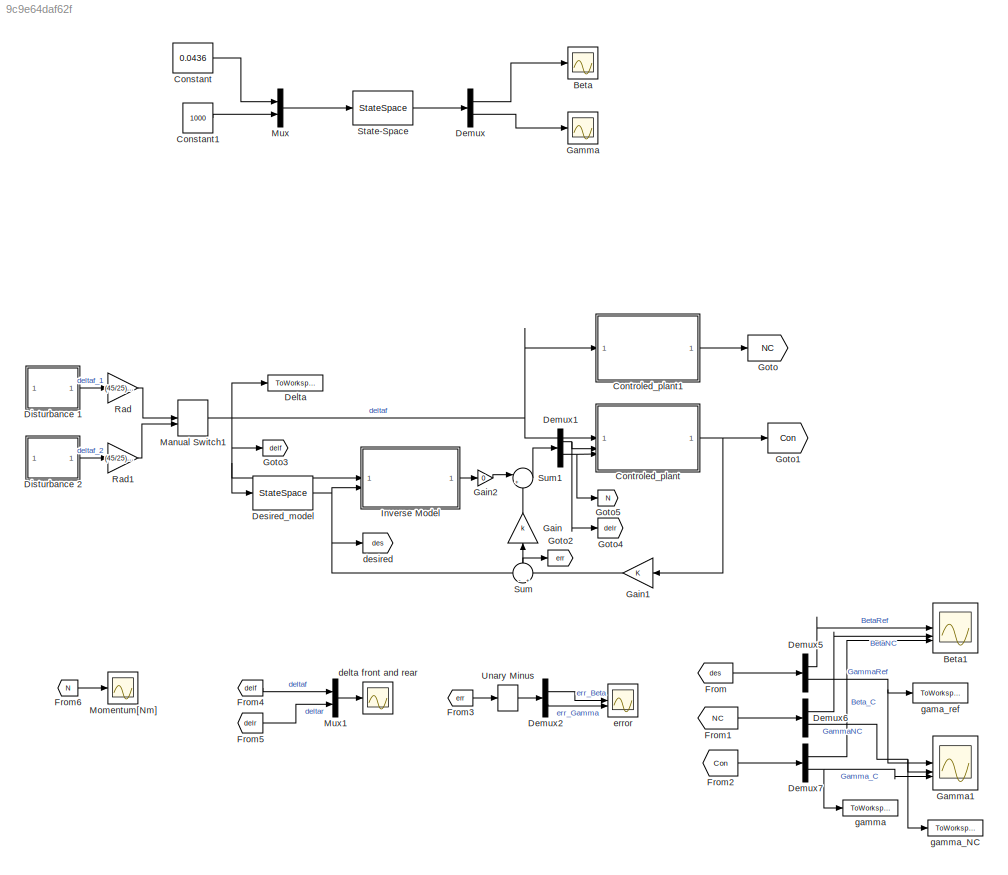
MODEL slx_9c9e64daf62f
KIND model
CONFIG AbsTol = auto
CONFIG EnableMultiTasking = off
CONFIG FixedStep = auto
CONFIG MaxStep = auto
CONFIG MinStep = auto
CONFIG RelTol = 1e-3
CONFIG SampleTimeConstraint = Unconstrained
CONFIG SolverName = VariableStepAuto
CONFIG StartTime = 0.0
CONFIG StopTime = 3
BLOCK [Scope] Beta
  Floating = off
  NumInputPorts = 1
  ScopeSpecificationString = Simulink.scopes.TimeScopeBlockCfg('CurrentConfiguration', extmgr.ConfigurationSet(extmgr.Configuration('Core','General UI',true,'FigureColor',[1 1 1]),extmgr.Configuration('Core','Source UI',true),extmgr.Configuration('Sources','WiredSimulink',true,'DataLoggingVariableName','ScopeData1'),extmgr.Configuration('Visuals','Time Domain',true,'SerializedDisplays',{struct('MinYLimReal','-0.00706','MaxYLi...<+1555ch>
BLOCK [Scope] Beta1
  Floating = off
  NumInputPorts = 3
  ScopeSpecificationString = Simulink.scopes.TimeScopeBlockCfg('CurrentConfiguration', extmgr.ConfigurationSet(extmgr.Configuration('Core','General UI',true,'FigureColor',[1 1 1]),extmgr.Configuration('Core','Source UI',true),extmgr.Configuration('Sources','WiredSimulink',true,'DataLoggingVariableName','ScopeData3'),extmgr.Configuration('Visuals','Time Domain',true,'SerializedDisplays',{struct('MinYLimReal','-0.01402','MaxYLi...<+1808ch>
BLOCK [Constant] Constant
  Value = 0.0436
BLOCK [Constant] Constant1
  Value = 1000
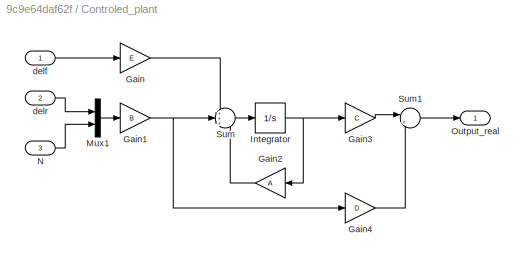
BLOCK [SubSystem] Controled_plant
BLOCK [Gain] Controled_plant/Gain
  Gain = E
  Multiplication = Matrix(K*u)
BLOCK [Gain] Controled_plant/Gain1
  Gain = B
  Multiplication = Matrix(K*u)
BLOCK [Gain] Controled_plant/Gain2
  Gain = A
  Multiplication = Matrix(K*u)
BLOCK [Gain] Controled_plant/Gain3
  Gain = C
  Multiplication = Matrix(K*u)
BLOCK [Gain] Controled_plant/Gain4
  Gain = D
  Multiplication = Matrix(K*u)
BLOCK [Integrator] Controled_plant/Integrator
  InitialCondition = x0
BLOCK [Mux] Controled_plant/Mux1
  DisplayOption = bar
  Inputs = 2
BLOCK [Inport] Controled_plant/N
  Port = 3
BLOCK [Outport] Controled_plant/Output_real
BLOCK [Sum] Controled_plant/Sum
  Inputs = +++
BLOCK [Sum] Controled_plant/Sum1
  Inputs = |++
BLOCK [Inport] Controled_plant/delf
BLOCK [Inport] Controled_plant/delr
  Port = 2
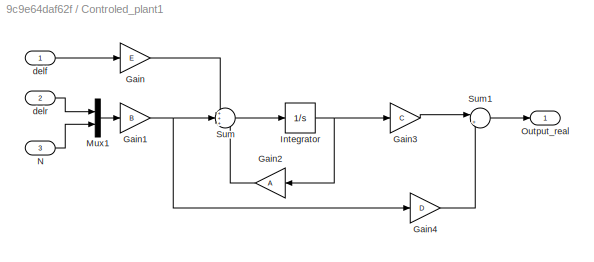
BLOCK [SubSystem] Controled_plant1
BLOCK [Gain] Controled_plant1/Gain
  Gain = E
  Multiplication = Matrix(K*u)
BLOCK [Gain] Controled_plant1/Gain1
  Gain = B
  Multiplication = Matrix(K*u)
BLOCK [Gain] Controled_plant1/Gain2
  Gain = A
  Multiplication = Matrix(K*u)
BLOCK [Gain] Controled_plant1/Gain3
  Gain = C
  Multiplication = Matrix(K*u)
BLOCK [Gain] Controled_plant1/Gain4
  Gain = D
  Multiplication = Matrix(K*u)
BLOCK [Integrator] Controled_plant1/Integrator
  InitialCondition = x0
BLOCK [Mux] Controled_plant1/Mux1
  DisplayOption = bar
  Inputs = 2
BLOCK [Inport] Controled_plant1/N
  Port = 3
BLOCK [Outport] Controled_plant1/Output_real
BLOCK [Sum] Controled_plant1/Sum
  Inputs = +++
BLOCK [Sum] Controled_plant1/Sum1
  Inputs = |++
BLOCK [Inport] Controled_plant1/delf
BLOCK [Inport] Controled_plant1/delr
  Port = 2
BLOCK [ToWorkspace] Delta
  FixptAsFi = on
  MaxDataPoints = inf
  SampleTime = -1
  SaveFormat = Timeseries
  VariableName = simout
BLOCK [Demux] Demux
  Outputs = 2
BLOCK [Demux] Demux1
  Outputs = 2
BLOCK [Demux] Demux2
  Outputs = 2
BLOCK [Demux] Demux5
  Outputs = 2
BLOCK [Demux] Demux6
  Outputs = 2
BLOCK [Demux] Demux7
  Outputs = 2
BLOCK [StateSpace] Desired_model
  A = Ad
  B = Ed
  C = [1,0;0,1]
  D = zeros(2,1)
  InitialCondition = 0
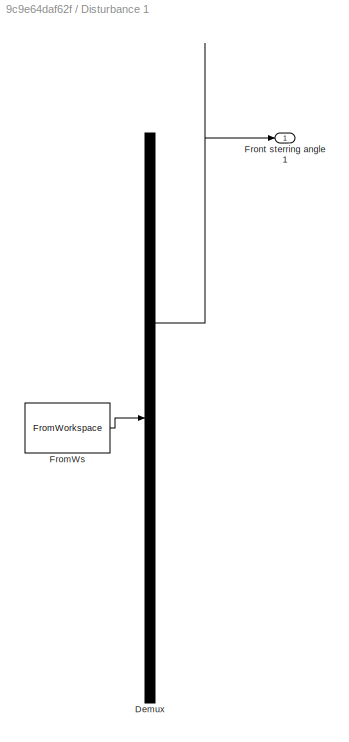
BLOCK [SubSystem] Disturbance 1
  ClipboardFcn = sigbuilder_block('clipboard');
  CloseFcn = sigbuilder_block('close');
  ContinueFcn = sigbuilder_block('continue');
  CopyFcn = sigbuilder_block('copy');
  DeleteFcn = sigbuilder_block('delete');
  LoadFcn = sigbuilder_block('load');
  MaskHideContents = on
  ModelCloseFcn = sigbuilder_block('modelClose');
  NameChangeFcn = sigbuilder_block('namechange');
  OpenFcn = sigbuilder_block('open',[265.8 141.6 550.8 400.2 ]);
  PauseFcn = sigbuilder_block('pause');
  PreSaveFcn = sigbuilder_block('preSave');
  StartFcn = sigbuilder_block('start');
  StopFcn = sigbuilder_block('stop');
  Tag = STV Subsys
BLOCK [Demux] Disturbance 1/Demux
  DisplayOption = none
  Outputs = 1
  Tag = STV Demux
BLOCK [FromWorkspace] Disturbance 1/FromWs
  Tag = STV FromWs
  VariableName = tuvar
BLOCK [Outport] Disturbance 1/Front sterring angle 1
  Tag = STV Outport
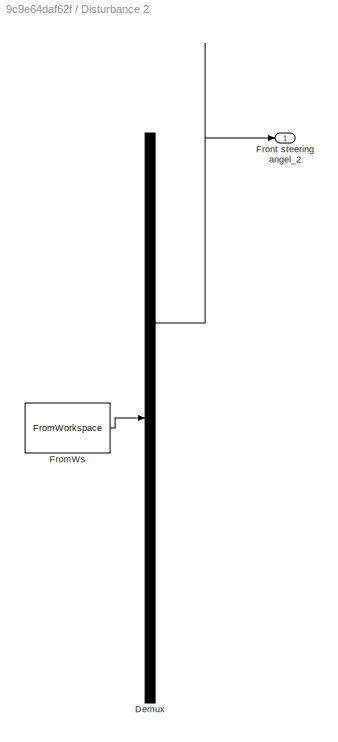
BLOCK [SubSystem] Disturbance 2
  ClipboardFcn = sigbuilder_block('clipboard');
  CloseFcn = sigbuilder_block('close');
  ContinueFcn = sigbuilder_block('continue');
  CopyFcn = sigbuilder_block('copy');
  DeleteFcn = sigbuilder_block('delete');
  LoadFcn = sigbuilder_block('load');
  MaskHideContents = on
  ModelCloseFcn = sigbuilder_block('modelClose');
  NameChangeFcn = sigbuilder_block('namechange');
  OpenFcn = sigbuilder_block('open',[265.8 141.6 550.8 400.2 ]);
  PauseFcn = sigbuilder_block('pause');
  PreSaveFcn = sigbuilder_block('preSave');
  StartFcn = sigbuilder_block('start');
  StopFcn = sigbuilder_block('stop');
  Tag = STV Subsys
BLOCK [Demux] Disturbance 2/Demux
  DisplayOption = none
  Outputs = 1
  Tag = STV Demux
BLOCK [FromWorkspace] Disturbance 2/FromWs
  Tag = STV FromWs
  VariableName = tuvar
BLOCK [Outport] Disturbance 2/Front steering angel_2
  Tag = STV Outport
BLOCK [From] From
  GotoTag = des
BLOCK [From] From1
  GotoTag = NC
BLOCK [From] From2
  GotoTag = Con
BLOCK [From] From3
  GotoTag = err
BLOCK [From] From4
  GotoTag = delf
BLOCK [From] From5
  GotoTag = delr
BLOCK [From] From6
  GotoTag = N
BLOCK [Gain] Gain
  Gain = k
  Multiplication = Matrix(K*u)
  NameLocation = right
BLOCK [Gain] Gain1
  Multiplication = Matrix(K*u)
BLOCK [Gain] Gain2
  Gain = 0
  Multiplication = Matrix(K*u)
BLOCK [Scope] Gamma
  Floating = off
  NumInputPorts = 1
  ScopeSpecificationString = Simulink.scopes.TimeScopeBlockCfg('CurrentConfiguration', extmgr.ConfigurationSet(extmgr.Configuration('Core','General UI',true,'FigureColor',[1 1 1]),extmgr.Configuration('Core','Source UI',true),extmgr.Configuration('Sources','WiredSimulink',true,'DataLoggingVariableName','ScopeData2'),extmgr.Configuration('Visuals','Time Domain',true,'SerializedDisplays',{struct('MinYLimReal','-0.1705','MaxYLim...<+1568ch>
BLOCK [Scope] Gamma1
  Floating = off
  NumInputPorts = 3
  ScopeSpecificationString = Simulink.scopes.TimeScopeBlockCfg('CurrentConfiguration', extmgr.ConfigurationSet(extmgr.Configuration('Core','General UI',true,'FigureColor',[1 1 1]),extmgr.Configuration('Core','Source UI',true),extmgr.Configuration('Sources','WiredSimulink',true,'DataLoggingVariableName','ScopeData1'),extmgr.Configuration('Visuals','Time Domain',true,'SerializedDisplays',{struct('MinYLimReal','-0.11213','MaxYLi...<+1800ch>
BLOCK [Goto] Goto
  GotoTag = NC
BLOCK [Goto] Goto1
  GotoTag = Con
BLOCK [Goto] Goto2
  GotoTag = err
BLOCK [Goto] Goto3
  GotoTag = delf
BLOCK [Goto] Goto4
  GotoTag = delr
BLOCK [Goto] Goto5
  GotoTag = N
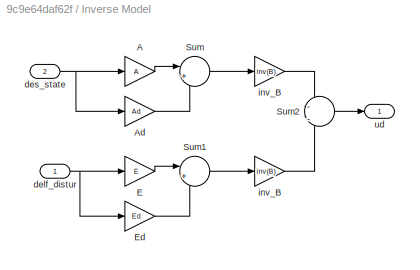
BLOCK [SubSystem] Inverse Model
BLOCK [Gain] Inverse Model/A
  Gain = A
  Multiplication = Matrix(K*u)
BLOCK [Gain] Inverse Model/Ad
  Gain = Ad
  Multiplication = Matrix(K*u)
BLOCK [Gain] Inverse Model/E
  Gain = E
  Multiplication = Matrix(K*u)
BLOCK [Gain] Inverse Model/Ed
  Gain = Ed
  Multiplication = Matrix(K*u)
BLOCK [Sum] Inverse Model/Sum
  Inputs = |+-
BLOCK [Sum] Inverse Model/Sum1
  Inputs = |+-
BLOCK [Sum] Inverse Model/Sum2
  Inputs = -|-
BLOCK [Inport] Inverse Model/delf_distur
BLOCK [Inport] Inverse Model/des_state
  Port = 2
BLOCK [Gain] Inverse Model/inv_B
  Gain = inv(B)
  Multiplication = Matrix(K*u)
BLOCK [Gain] Inverse Model/inv_B 
  Gain = inv(B)
  Multiplication = Matrix(K*u)
BLOCK [Outport] Inverse Model/ud
BLOCK [ManualSwitch] Manual Switch1
  CurrentSetting = 0
BLOCK [Scope] Momentum[Nm]
  Floating = off
  NumInputPorts = 1
  ScopeSpecificationString = Simulink.scopes.TimeScopeBlockCfg('CurrentConfiguration', extmgr.ConfigurationSet(extmgr.Configuration('Core','General UI',true,'FigureColor',[1 1 1]),extmgr.Configuration('Core','Source UI',true),extmgr.Configuration('Sources','WiredSimulink',true,'DataLoggingVariableName','ScopeData5'),extmgr.Configuration('Visuals','Time Domain',true,'SerializedDisplays',{struct('MinYLimReal','-1864.35606','Max...<+1662ch>
BLOCK [Mux] Mux
  DisplayOption = bar
  Inputs = 2
BLOCK [Mux] Mux1
  DisplayOption = bar
  Inputs = 2
BLOCK [Gain] Rad
  Gain = (45/25)*(pi/180)
BLOCK [Gain] Rad1
  Gain = (45/25)*(pi/180)
BLOCK [StateSpace] State-Space
  A = A
  B = B
  C = C
  D = D
  InitialCondition = x0
BLOCK [Sum] Sum
  Inputs = -|+
  NameLocation = right
BLOCK [Sum] Sum1
  Inputs = |++
BLOCK [UnaryMinus] Unary Minus
BLOCK [Scope] delta front and rear
  Floating = off
  NumInputPorts = 1
  ScopeSpecificationString = Simulink.scopes.TimeScopeBlockCfg('CurrentConfiguration', extmgr.ConfigurationSet(extmgr.Configuration('Core','General UI',true,'FigureColor',[1 1 1]),extmgr.Configuration('Core','Source UI',true),extmgr.Configuration('Sources','WiredSimulink',true,'DataLoggingVariableName','ScopeData4'),extmgr.Configuration('Visuals','Time Domain',true,'SerializedDisplays',{struct('MinYLimReal','-0.03142','MaxYLi...<+1763ch>
BLOCK [Goto] desired
  GotoTag = des
BLOCK [Scope] error
  Floating = off
  NumInputPorts = 2
  ScopeSpecificationString = Simulink.scopes.TimeScopeBlockCfg('CurrentConfiguration', extmgr.ConfigurationSet(extmgr.Configuration('Core','General UI',true,'FigureColor',[1 1 1]),extmgr.Configuration('Core','Source UI',true),extmgr.Configuration('Sources','WiredSimulink',true,'DataLoggingVariableName','ScopeData2'),extmgr.Configuration('Visuals','Time Domain',true,'SerializedDisplays',{struct('MinYLimReal','-0.00011','MaxYLi...<+2308ch>
BLOCK [ToWorkspace] gama_ref
  FixptAsFi = on
  MaxDataPoints = inf
  SampleTime = -1
  SaveFormat = Timeseries
  VariableName = simout1
BLOCK [ToWorkspace] gamma
  FixptAsFi = on
  MaxDataPoints = inf
  SampleTime = -1
  SaveFormat = Timeseries
  VariableName = simout2
BLOCK [ToWorkspace] gamma_NC
  FixptAsFi = on
  MaxDataPoints = inf
  SampleTime = -1
  SaveFormat = Timeseries
  VariableName = simout3
LINE Constant1:1 -> Mux:2
LINE Constant:1 -> Mux:1
NET Controled_plant/Gain1:1 -> Controled_plant/Gain4:1, Controled_plant/Sum:2
LINE Controled_plant/Gain2:1 -> Controled_plant/Sum:3
LINE Controled_plant/Gain3:1 -> Controled_plant/Sum1:1
LINE Controled_plant/Gain4:1 -> Controled_plant/Sum1:2
LINE Controled_plant/Gain:1 -> Controled_plant/Sum:1
NET Controled_plant/Integrator:1 -> Controled_plant/Gain2:1, Controled_plant/Gain3:1
LINE Controled_plant/Mux1:1 -> Controled_plant/Gain1:1
LINE Controled_plant/N:1 -> Controled_plant/Mux1:2
LINE Controled_plant/Sum1:1 -> Controled_plant/Output_real:1
LINE Controled_plant/Sum:1 -> Controled_plant/Integrator:1
LINE Controled_plant/delf:1 -> Controled_plant/Gain:1
LINE Controled_plant/delr:1 -> Controled_plant/Mux1:1
NET Controled_plant1/Gain1:1 -> Controled_plant1/Gain4:1, Controled_plant1/Sum:2
LINE Controled_plant1/Gain2:1 -> Controled_plant1/Sum:3
LINE Controled_plant1/Gain3:1 -> Controled_plant1/Sum1:1
LINE Controled_plant1/Gain4:1 -> Controled_plant1/Sum1:2
LINE Controled_plant1/Gain:1 -> Controled_plant1/Sum:1
NET Controled_plant1/Integrator:1 -> Controled_plant1/Gain2:1, Controled_plant1/Gain3:1
LINE Controled_plant1/Mux1:1 -> Controled_plant1/Gain1:1
LINE Controled_plant1/N:1 -> Controled_plant1/Mux1:2
LINE Controled_plant1/Sum1:1 -> Controled_plant1/Output_real:1
LINE Controled_plant1/Sum:1 -> Controled_plant1/Integrator:1
LINE Controled_plant1/delf:1 -> Controled_plant1/Gain:1
LINE Controled_plant1/delr:1 -> Controled_plant1/Mux1:1
LINE Controled_plant1:1 -> Goto:1
NET Controled_plant:1 -> Gain1:1, Goto1:1
NET Demux1:1 -> Controled_plant:2, Goto4:1
NET Demux1:2 -> Controled_plant:3, Goto5:1
LINE Demux2:1 -> error:1
LINE Demux2:2 -> error:2
LINE Demux5:1 -> Beta1:1
NET Demux5:2 -> Gamma1:1, gama_ref:1
LINE Demux6:1 -> Beta1:2
NET Demux6:2 -> Gamma1:2, gamma_NC:1
LINE Demux7:1 -> Beta1:3
NET Demux7:2 -> Gamma1:3, gamma:1
LINE Demux:1 -> Beta:1
LINE Demux:2 -> Gamma:1
NET Desired_model:1 -> Inverse Model:2, Sum:1, desired:1
LINE Disturbance 1:1 -> Rad:1
LINE Disturbance 2:1 -> Rad1:1
LINE From1:1 -> Demux6:1
LINE From2:1 -> Demux7:1
LINE From3:1 -> Unary Minus:1
LINE From4:1 -> Mux1:1
LINE From5:1 -> Mux1:2
LINE From6:1 -> Momentum[Nm]:1
LINE From:1 -> Demux5:1
LINE Gain1:1 -> Sum:2
LINE Gain2:1 -> Sum1:1
LINE Gain:1 -> Sum1:2
LINE Inverse Model/A:1 -> Inverse Model/Sum:1
LINE Inverse Model/Ad:1 -> Inverse Model/Sum:2
LINE Inverse Model/E:1 -> Inverse Model/Sum1:1
LINE Inverse Model/Ed:1 -> Inverse Model/Sum1:2
LINE Inverse Model/Sum1:1 -> Inverse Model/inv_B :1
LINE Inverse Model/Sum2:1 -> Inverse Model/ud:1
LINE Inverse Model/Sum:1 -> Inverse Model/inv_B:1
NET Inverse Model/delf_distur:1 -> Inverse Model/E:1, Inverse Model/Ed:1
NET Inverse Model/des_state:1 -> Inverse Model/A:1, Inverse Model/Ad:1
LINE Inverse Model/inv_B :1 -> Inverse Model/Sum2:2
LINE Inverse Model/inv_B:1 -> Inverse Model/Sum2:1
LINE Inverse Model:1 -> Gain2:1
NET Manual Switch1:1 -> Controled_plant1:1, Controled_plant:1, Delta:1, Desired_model:1, Goto3:1, Inverse Model:1
LINE Mux1:1 -> delta front and rear:1
LINE Mux:1 -> State-Space:1
LINE Rad1:1 -> Manual Switch1:2
LINE Rad:1 -> Manual Switch1:1
LINE State-Space:1 -> Demux:1
LINE Sum1:1 -> Demux1:1
NET Sum:1 -> Gain:1, Goto2:1
LINE Unary Minus:1 -> Demux2:1
note: NET lines group one-source signal fan-out (src -> all destinations, sorted); 1:1 wires keep LINE
